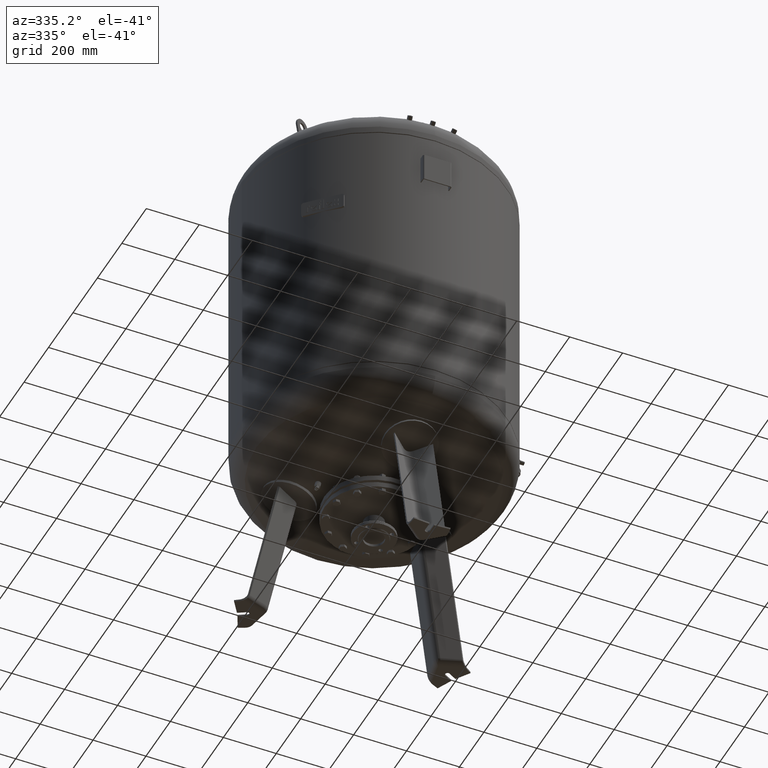
[diagram: clean part render]
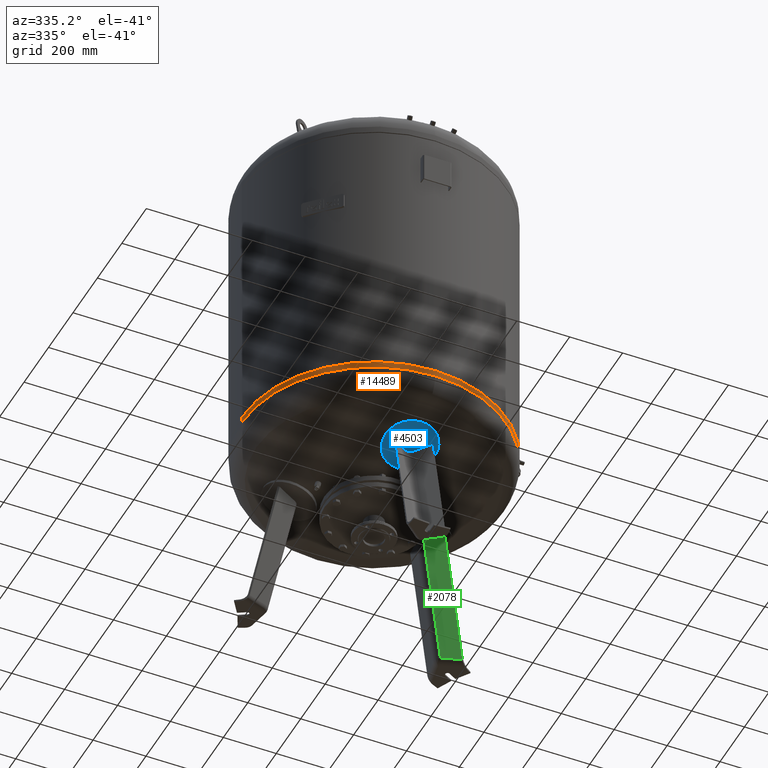
[diagram: same view with three faces highlighted in distinct colors, each labeled with its STEP entity id]
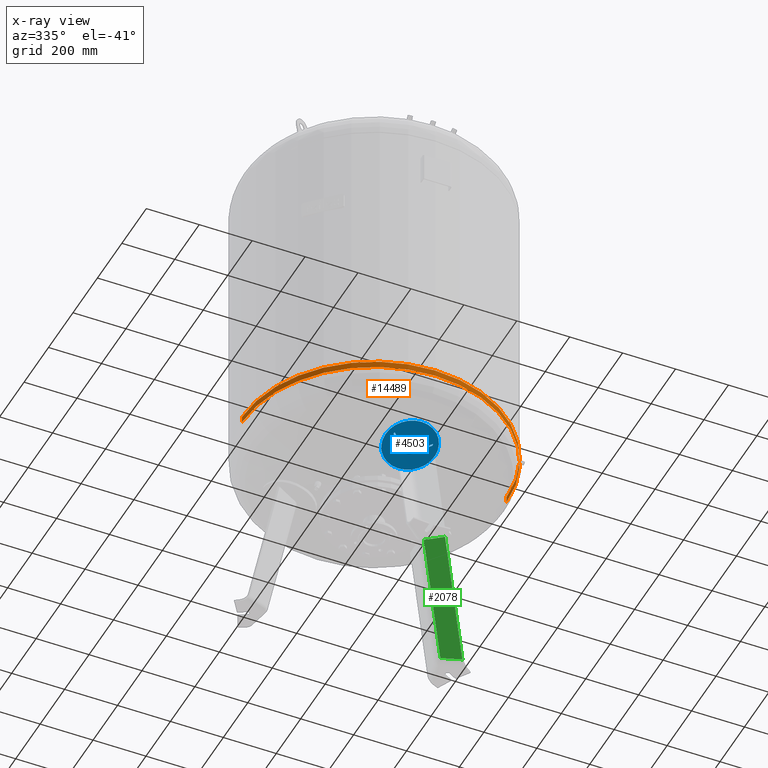
[diagram: x-ray of the same camera — body ghosted, the three highlighted faces saturated]
A machine part, auxiliary view with three faces highlighted in distinct colors.
The next image is the same camera in x-ray (body ghosted, the three faces saturated) — at least one of them is partly hidden behind the body in this view.
Their STEP definitions:

[orange] entity #14489 — the highlighted cylindrical surface (partial cylindrical patch) has radius 500 mm, axis along (-0, -0, 1).
#14297=CARTESIAN_POINT('',(-500.0,-3.995410E-014,677.500000000000000));
#14298=VERTEX_POINT('',#14297);
#14299=CARTESIAN_POINT('',(-500.0,-3.553717E-014,653.455355072719390));
#14300=VERTEX_POINT('',#14299);
#14301=CARTESIAN_POINT('',(-500.0,-3.995410E-014,677.500000000000000));
#14302=DIRECTION('',(0.0,0.0,-1.0));
#14303=VECTOR('',#14302,24.044644927280615);
#14304=LINE('',#14301,#14303);
#14305=EDGE_CURVE('',#14298,#14300,#14304,.T.);
#14307=CARTESIAN_POINT('',(500.0,2.127622E-014,677.500000000000110));
#14308=VERTEX_POINT('',#14307);
#14316=CARTESIAN_POINT('',(500.0,2.569315E-014,653.455355072719500));
#14317=VERTEX_POINT('',#14316);
#14318=CARTESIAN_POINT('',(500.0,2.127622E-014,677.500000000000110));
#14319=DIRECTION('',(0.0,0.0,-1.0));
#14320=VECTOR('',#14319,24.044644927280615);
#14321=LINE('',#14318,#14320);
#14322=EDGE_CURVE('',#14308,#14317,#14321,.T.);
#14348=CARTESIAN_POINT('',(3.381269E-030,-500.000000000000060,653.455355072719390));
#14349=VERTEX_POINT('',#14348);
#14359=CARTESIAN_POINT('',(-2.595210E-014,-3.553717E-014,653.455355072719500));
#14360=DIRECTION('',(0.0,0.0,1.0));
#14361=DIRECTION('',(-1.0,0.0,0.0));
#14362=AXIS2_PLACEMENT_3D('',#14359,#14360,#14361);
#14363=CIRCLE('',#14362,500.0);
#14364=EDGE_CURVE('',#14300,#14349,#14363,.T.);
#14461=CARTESIAN_POINT('',(-2.595210E-014,-3.553717E-014,653.455355072719500));
#14462=DIRECTION('',(0.0,0.0,1.0));
#14463=DIRECTION('',(-1.0,0.0,0.0));
#14464=AXIS2_PLACEMENT_3D('',#14461,#14462,#14463);
#14465=CIRCLE('',#14464,500.0);
#14466=EDGE_CURVE('',#14349,#14317,#14465,.T.);
#14471=CARTESIAN_POINT('',(-2.756489E-014,-3.774564E-014,665.477677536359810));
#14472=DIRECTION('',(-1.341503E-016,-1.836970E-016,1.0));
#14473=DIRECTION('',(-1.0,0.0,0.0));
#14474=AXIS2_PLACEMENT_3D('',#14471,#14472,#14473);
#14475=CYLINDRICAL_SURFACE('',#14474,500.0);
#14476=ORIENTED_EDGE('',*,*,#14305,.T.);
#14477=ORIENTED_EDGE('',*,*,#14364,.T.);
#14478=ORIENTED_EDGE('',*,*,#14466,.T.);
#14479=ORIENTED_EDGE('',*,*,#14322,.F.);
#14480=CARTESIAN_POINT('',(-2.917769E-014,-3.995410E-014,677.500000000000000));
#14481=DIRECTION('',(0.0,0.0,1.0));
#14482=DIRECTION('',(-1.0,0.0,0.0));
#14483=AXIS2_PLACEMENT_3D('',#14480,#14481,#14482);
#14484=CIRCLE('',#14483,500.0);
#14485=EDGE_CURVE('',#14298,#14308,#14484,.T.);
#14486=ORIENTED_EDGE('',*,*,#14485,.F.);
#14487=EDGE_LOOP('',(#14476,#14477,#14478,#14479,#14486));
#14488=FACE_OUTER_BOUND('',#14487,.T.);
#14489=ADVANCED_FACE('',(#14488),#14475,.T.);

[blue] entity #4503 — the highlighted spherical surface has radius 1006 mm.
#3715=CARTESIAN_POINT('',(1.355536E-013,-199.528414518467460,469.158360530759300));
#3716=VERTEX_POINT('',#3715);
#3725=CARTESIAN_POINT('',(-2.682530E-014,-389.739717777498130,530.961759405748920));
#3726=VERTEX_POINT('',#3725);
#3727=CARTESIAN_POINT('',(6.045519E-014,-294.634066147982880,500.060059968254170));
#3728=DIRECTION('',(-2.640756E-016,-0.309016994374948,-0.951056516295154));
#3729=DIRECTION('',(7.505351E-016,0.951056516295154,-0.309016994374948));
#3730=AXIS2_PLACEMENT_3D('',#3727,#3728,#3729);
#3731=CIRCLE('',#3730,100.0);
#3732=EDGE_CURVE('',#3726,#3716,#3731,.T.);
#4352=CARTESIAN_POINT('',(3.247985E-013,14.697347569170404,1452.084259496684100));
#4353=DIRECTION('',(1.0,0.0,0.0));
#4354=DIRECTION('',(7.505351E-016,0.951056516295154,-0.309016994374948));
#4355=AXIS2_PLACEMENT_3D('',#4352,#4353,#4354);
#4356=SPHERICAL_SURFACE('',#4355,1006.0);
#4357=CARTESIAN_POINT('',(6.045519E-014,-294.634066147982880,500.060059968254170));
#4358=DIRECTION('',(-2.640756E-016,-0.309016994374948,-0.951056516295154));
#4359=DIRECTION('',(7.505351E-016,0.951056516295154,-0.309016994374948));
#4360=AXIS2_PLACEMENT_3D('',#4357,#4358,#4359);
#4361=CIRCLE('',#4360,100.0);
#4362=EDGE_CURVE('',#3716,#3726,#4361,.T.);
#4363=ORIENTED_EDGE('',*,*,#4362,.T.);
#4364=ORIENTED_EDGE('',*,*,#3732,.T.);
#4365=EDGE_LOOP('',(#4363,#4364));
#4366=FACE_OUTER_BOUND('',#4365,.T.);
#4367=CARTESIAN_POINT('',(-72.837866169854934,-325.355732478448830,508.106215259451630));
#4368=VERTEX_POINT('',#4367);
#4369=CARTESIAN_POINT('',(-73.499999999999886,-318.506317434111050,505.718015578199410));
#4370=VERTEX_POINT('',#4369);
#4371=CARTESIAN_POINT('',(-84.667466494879974,7.077275584631195,1453.703955797395800));
#4372=DIRECTION('',(0.995793708775987,0.089621433789838,-0.019049623818306));
#4373=DIRECTION('',(-0.019126591083317,4.684664E-018,-0.999817070025078));
#4374=AXIS2_PLACEMENT_3D('',#4371,#4372,#4373);
#4375=CIRCLE('',#4374,1002.400484439319300);
#4376=EDGE_CURVE('',#4368,#4370,#4375,.T.);
#4377=ORIENTED_EDGE('',*,*,#4376,.F.);
#4378=CARTESIAN_POINT('',(-16.136450826554409,-280.133865715810600,490.392952149244080));
#4379=VERTEX_POINT('',#4378);
#4380=CARTESIAN_POINT('',(36.878824681629915,-27.989166038700091,1461.157558058853700));
#4381=DIRECTION('',(-0.645458033062181,0.747104967402683,-0.158802063077708));
#4382=DIRECTION('',(5.092368E-017,0.207911690817760,0.978147600733806));
#4383=AXIS2_PLACEMENT_3D('',#4380,#4381,#4382);
#4384=CIRCLE('',#4383,1004.376169121564000);
#4385=EDGE_CURVE('',#4379,#4368,#4384,.T.);
#4386=ORIENTED_EDGE('',*,*,#4385,.F.);
#4387=CARTESIAN_POINT('',(16.136450826554661,-280.133865715810600,490.392952149244080));
#4388=VERTEX_POINT('',#4387);
#4389=CARTESIAN_POINT('',(16.136450826554661,-280.133865715810600,490.392952149244080));
#4390=CARTESIAN_POINT('',(16.055788335213304,-280.068711173970600,490.371623892671440));
#4391=CARTESIAN_POINT('',(15.974560938435895,-280.003937796076910,490.350420493468330));
#4392=CARTESIAN_POINT('',(15.271072185139301,-279.450175733366620,490.169148601515130));
#4393=CARTESIAN_POINT('',(14.617155696579983,-278.983806029977020,490.016489016976440));
#4394=CARTESIAN_POINT('',(13.254162622372212,-278.109086722377530,489.730169035990510));
#4395=CARTESIAN_POINT('',(12.545018530551998,-277.700688845133810,489.596492822823280));
#4396=CARTESIAN_POINT('',(11.082569575685701,-276.951156519132950,489.351162059827520));
#4397=CARTESIAN_POINT('',(10.329265683405854,-276.610020363679380,489.239506937421310));
#4398=CARTESIAN_POINT('',(8.791205486625531,-276.001577381599190,489.040364541220580));
#4399=CARTESIAN_POINT('',(8.005754446746538,-275.733995894137930,488.952787360993230));
#4400=CARTESIAN_POINT('',(6.415809135875814,-275.276198818704300,488.802955942629920));
#4401=CARTESIAN_POINT('',(5.611314203531454,-275.085985307559840,488.740702376916890));
#4402=CARTESIAN_POINT('',(3.998040789200811,-274.783995146262500,488.641866930361120));
#4403=CARTESIAN_POINT('',(3.189177908543455,-274.672207140675880,488.605281330539300));
#4404=CARTESIAN_POINT('',(1.582421500277553,-274.524969362016180,488.557093949216380));
#4405=CARTESIAN_POINT('',(0.784527432496211,-274.489524912797550,488.545493912186370));
#4406=CARTESIAN_POINT('',(1.245596E-013,-274.489524912797550,488.545493912186370));
#4407=CARTESIAN_POINT('',(-0.784527432495960,-274.489524912797550,488.545493912186370));
#4408=CARTESIAN_POINT('',(-1.582421500277301,-274.524969362016180,488.557093949216380));
#4409=CARTESIAN_POINT('',(-3.189177908543210,-274.672207140675880,488.605281330539300));
#4410=CARTESIAN_POINT('',(-3.998040789200574,-274.783995146262500,488.641866930361120));
#4411=CARTESIAN_POINT('',(-5.611314203531220,-275.085985307559840,488.740702376916890));
#4412=CARTESIAN_POINT('',(-6.415809135875574,-275.276198818704300,488.802955942629920));
#4413=CARTESIAN_POINT('',(-8.005754446746293,-275.733995894137930,488.952787360993230));
#4414=CARTESIAN_POINT('',(-8.791205486625280,-276.001577381599190,489.040364541220580));
#4415=CARTESIAN_POINT('',(-10.329265683405596,-276.610020363679380,489.239506937421370));
#4416=CARTESIAN_POINT('',(-11.082569575685449,-276.951156519132950,489.351162059827520));
#4417=CARTESIAN_POINT('',(-12.545018530551733,-277.700688845133810,489.596492822823280));
#4418=CARTESIAN_POINT('',(-13.254162622371913,-278.109086722377530,489.730169035990630));
#4419=CARTESIAN_POINT('',(-14.617155696579696,-278.983806029976960,490.016489016976440));
#4420=CARTESIAN_POINT('',(-15.271072185138980,-279.450175733366730,490.169148601515020));
#4421=CARTESIAN_POINT('',(-15.974560938435571,-280.003937796077030,490.350420493468220));
#4422=CARTESIAN_POINT('',(-16.055788335213052,-280.068711173970600,490.371623892671440));
#4423=CARTESIAN_POINT('',(-16.136450826554409,-280.133865715810600,490.392952149244080));
#4424=B_SPLINE_CURVE_WITH_KNOTS('',3,(#4389,#4390,#4391,#4392,#4393,#4394,#4395,#4396,#4397,#4398,#4399,#4400,#4401,#4402,#4403,#4404,#4405,#4406,#4407,#4408,#4409,#4410,#4411,#4412,#4413,#4414,#4415,#4416,#4417,#4418,#4419,#4420,#4421,#4422,#4423),.UNSPECIFIED.,.F.,.U.,(4,2,2,2,2,2,2,2,3,2,2,2,2,2,2,2,4),(-16.784681571035506,-16.475076082417758,-14.121493784929527,-11.767911487441268,-9.414329189953008,-7.060746892464749,-4.707164594976490,-2.353582297488259,0.0,2.353582297488253,4.707164594976506,7.060746892464759,9.414329189953012,11.767911487441264,14.121493784929518,16.475076082417772,16.784681571035524),.UNSPECIFIED.);
#4425=EDGE_CURVE('',#4388,#4379,#4424,.T.);
#4426=ORIENTED_EDGE('',*,*,#4425,.F.);
#4427=CARTESIAN_POINT('',(72.837866169855118,-325.355732478448830,508.106215259451630));
#4428=VERTEX_POINT('',#4427);
#4429=CARTESIAN_POINT('',(-36.878824681629212,-27.989166038699977,1461.157558058853700));
#4430=DIRECTION('',(0.645458033062182,0.747104967402682,-0.158802063077709));
#4431=DIRECTION('',(5.092368E-017,0.207911690817760,0.978147600733805));
#4432=AXIS2_PLACEMENT_3D('',#4429,#4430,#4431);
#4433=CIRCLE('',#4432,1004.376169121563900);
#4434=EDGE_CURVE('',#4428,#4388,#4433,.T.);
#4435=ORIENTED_EDGE('',*,*,#4434,.F.);
#4436=CARTESIAN_POINT('',(73.500000000000128,-318.506317434111050,505.718015578199190));
#4437=VERTEX_POINT('',#4436);
#4438=CARTESIAN_POINT('',(84.667466494880742,7.077275584631138,1453.703955797395800));
#4439=DIRECTION('',(-0.995793708775987,0.089621433789840,-0.019049623818306));
#4440=DIRECTION('',(-0.019126591083317,4.684664E-018,0.999817070025078));
#4441=AXIS2_PLACEMENT_3D('',#4438,#4439,#4440);
#4442=CIRCLE('',#4441,1002.400484439319300);
#4443=EDGE_CURVE('',#4437,#4428,#4442,.T.);
#4444=ORIENTED_EDGE('',*,*,#4443,.F.);
#4445=CARTESIAN_POINT('',(16.136450826554636,-272.683576393646550,488.140371349142640));
#4446=VERTEX_POINT('',#4445);
#4447=CARTESIAN_POINT('',(-33.055219954219147,-23.563418834532399,1460.216836450315200));
#4448=DIRECTION('',(-0.645458033062182,-0.747104967402682,0.158802063077709));
#4449=DIRECTION('',(-5.092368E-017,-0.207911690817760,-0.978147600733805));
#4450=AXIS2_PLACEMENT_3D('',#4447,#4448,#4449);
#4451=CIRCLE('',#4450,1004.695639176399000);
#4452=EDGE_CURVE('',#4446,#4437,#4451,.T.);
#4453=ORIENTED_EDGE('',*,*,#4452,.F.);
#4454=CARTESIAN_POINT('',(-16.136450826554437,-272.683576393646660,488.140371349142640));
#4455=VERTEX_POINT('',#4454);
#4456=CARTESIAN_POINT('',(-16.136450826554437,-272.683576393646660,488.140371349142640));
#4457=CARTESIAN_POINT('',(-16.056543514067616,-272.618922255207510,488.119758337632730));
#4458=CARTESIAN_POINT('',(-15.976082350464866,-272.554643239234570,488.099264993121150));
#4459=CARTESIAN_POINT('',(-15.273208616904984,-272.000291427142600,487.922527930590210));
#4460=CARTESIAN_POINT('',(-14.619130546465540,-271.532916879230870,487.773524823873860));
#4461=CARTESIAN_POINT('',(-13.255823579241481,-270.656345283794110,487.494072222439000));
#4462=CARTESIAN_POINT('',(-12.546527218548720,-270.247099859986290,487.363607291874300));
#4463=CARTESIAN_POINT('',(-11.083789489576636,-269.496035811884780,487.124177053163460));
#4464=CARTESIAN_POINT('',(-10.330349102090997,-269.154215457124850,487.015211181380040));
#4465=CARTESIAN_POINT('',(-8.792035986315941,-268.544568607379860,486.820870060878350));
#4466=CARTESIAN_POINT('',(-8.006469333644533,-268.276467252523840,486.735407184319850));
#4467=CARTESIAN_POINT('',(-6.416316571608137,-267.817791462800410,486.589196233214520));
#4468=CARTESIAN_POINT('',(-5.611729804286177,-267.627219100374360,486.528448813028320));
#4469=CARTESIAN_POINT('',(-3.998296859116512,-267.324664919232480,486.432006304194660));
#4470=CARTESIAN_POINT('',(-3.189366430951302,-267.212671750275380,486.396307595334520));
#4471=CARTESIAN_POINT('',(-1.582498479684512,-267.065165766231530,486.349288981572390));
#4472=CARTESIAN_POINT('',(-0.784560416873323,-267.029658287757290,486.337970779564160));
#4473=CARTESIAN_POINT('',(9.974081E-014,-267.029658287757290,486.337970779564160));
#4474=CARTESIAN_POINT('',(0.784560416873521,-267.029658287757290,486.337970779564160));
#4475=CARTESIAN_POINT('',(1.582498479684705,-267.065165766231530,486.349288981572390));
#4476=CARTESIAN_POINT('',(3.189366430951490,-267.212671750275380,486.396307595334520));
#4477=CARTESIAN_POINT('',(3.998296859116698,-267.324664919232590,486.432006304194540));
#4478=CARTESIAN_POINT('',(5.611729804286367,-267.627219100374360,486.528448813028210));
#4479=CARTESIAN_POINT('',(6.416316571608327,-267.817791462800410,486.589196233214520));
#4480=CARTESIAN_POINT('',(8.006469333644727,-268.276467252523840,486.735407184319850));
#4481=CARTESIAN_POINT('',(8.792035986316138,-268.544568607379800,486.820870060878290));
#4482=CARTESIAN_POINT('',(10.330349102091189,-269.154215457124790,487.015211181379980));
#4483=CARTESIAN_POINT('',(11.083789489576766,-269.496035811884840,487.124177053163520));
#4484=CARTESIAN_POINT('',(12.546527218548844,-270.247099859986290,487.363607291874360));
#4485=CARTESIAN_POINT('',(13.255823579241612,-270.656345283794110,487.494072222438890));
#4486=CARTESIAN_POINT('',(14.619130546465692,-271.532916879230870,487.773524823873860));
#4487=CARTESIAN_POINT('',(15.273208616905162,-272.000291427142600,487.922527930590210));
#4488=CARTESIAN_POINT('',(15.976082350465026,-272.554643239234570,488.099264993121150));
#4489=CARTESIAN_POINT('',(16.056543514067837,-272.618922255207450,488.119758337632730));
#4490=CARTESIAN_POINT('',(16.136450826554636,-272.683576393646550,488.140371349142640));
#4491=B_SPLINE_CURVE_WITH_KNOTS('',3,(#4456,#4457,#4458,#4459,#4460,#4461,#4462,#4463,#4464,#4465,#4466,#4467,#4468,#4469,#4470,#4471,#4472,#4473,#4474,#4475,#4476,#4477,#4478,#4479,#4480,#4481,#4482,#4483,#4484,#4485,#4486,#4487,#4488,#4489,#4490),.UNSPECIFIED.,.F.,.U.,(4,2,2,2,2,2,2,2,3,2,2,2,2,2,2,2,4),(-16.782365627384145,-16.475768754341857,-14.122087503721616,-11.768406253101347,-9.414725002481077,-7.061043751860808,-4.707362501240539,-2.353681250620269,0.0,2.353681250620262,4.707362501240525,7.061043751860787,9.414725002481049,11.768406253101311,14.122087503721573,16.475768754341836,16.782365627384028),.UNSPECIFIED.);
#4492=EDGE_CURVE('',#4455,#4446,#4491,.T.);
#4493=ORIENTED_EDGE('',*,*,#4492,.F.);
#4494=CARTESIAN_POINT('',(33.055219954219837,-23.563418834532513,1460.216836450315200));
#4495=DIRECTION('',(0.645458033062181,-0.747104967402683,0.158802063077709));
#4496=DIRECTION('',(-5.092368E-017,-0.207911690817760,-0.978147600733806));
#4497=AXIS2_PLACEMENT_3D('',#4494,#4495,#4496);
#4498=CIRCLE('',#4497,1004.695639176398800);
#4499=EDGE_CURVE('',#4370,#4455,#4498,.T.);
#4500=ORIENTED_EDGE('',*,*,#4499,.F.);
#4501=EDGE_LOOP('',(#4377,#4386,#4426,#4435,#4444,#4453,#4493,#4500));
#4502=FACE_BOUND('',#4501,.T.);
#4503=ADVANCED_FACE('',(#4366,#4502),#4356,.T.);

[green] entity #2078 — the highlighted planar face has unit normal (-0.3243, -0.9325, -0.1588).
#1301=CARTESIAN_POINT('',(401.805642099864600,147.112106057392170,21.029948423057292));
#1302=VERTEX_POINT('',#1301);
#1310=CARTESIAN_POINT('',(330.204527811773970,172.010904562808040,21.029948423057292));
#1311=VERTEX_POINT('',#1310);
#1312=CARTESIAN_POINT('',(401.805642099864600,147.112106057392170,21.029948423057292));
#1313=DIRECTION('',(-0.944521094592691,0.328450760190053,0.0));
#1314=VECTOR('',#1313,75.806792138366575);
#1315=LINE('',#1312,#1314);
#1316=EDGE_CURVE('',#1302,#1311,#1315,.T.);
#1762=CARTESIAN_POINT('',(312.584562163770560,95.600291538899285,505.718015578199410));
#1763=VERTEX_POINT('',#1762);
#1847=CARTESIAN_POINT('',(244.219129764969920,122.367211854108690,488.140371349142640));
#1848=VERTEX_POINT('',#1847);
#1887=CARTESIAN_POINT('',(3.878909333607965,40.408369625302811,1460.216836450315200));
#1888=DIRECTION('',(0.324282864533178,0.932535537409926,0.158802063077709));
#1889=DIRECTION('',(0.180056805991956,0.103955845408880,-0.978147600733806));
#1890=AXIS2_PLACEMENT_3D('',#1887,#1888,#1889);
#1891=CIRCLE('',#1890,1004.695639176398800);
#1892=EDGE_CURVE('',#1763,#1848,#1891,.T.);
#2000=CARTESIAN_POINT('',(330.204527811773970,172.010904562808040,21.029948423057292));
#2001=DIRECTION('',(-0.180056805991956,-0.103955845408880,0.978147600733805));
#2002=VECTOR('',#2001,477.545947641909550);
#2003=LINE('',#2000,#2002);
#2004=EDGE_CURVE('',#1311,#1848,#2003,.T.);
#2055=CARTESIAN_POINT('',(401.805642099864600,147.112106057392170,21.029948423057292));
#2056=DIRECTION('',(-0.180056805991956,-0.103955845408880,0.978147600733806));
#2057=VECTOR('',#2056,495.516286899369280);
#2058=LINE('',#2055,#2057);
#2059=EDGE_CURVE('',#1302,#1763,#2058,.T.);
#2067=CARTESIAN_POINT('',(414.463905404747950,154.420357783939720,-47.735293817669401));
#2068=DIRECTION('',(-0.324282864533177,-0.932535537409926,-0.158802063077709));
#2069=DIRECTION('',(0.180056805991956,0.103955845408880,-0.978147600733806));
#2070=AXIS2_PLACEMENT_3D('',#2067,#2068,#2069);
#2071=PLANE('',#2070);
#2072=ORIENTED_EDGE('',*,*,#2059,.T.);
#2073=ORIENTED_EDGE('',*,*,#1892,.T.);
#2074=ORIENTED_EDGE('',*,*,#2004,.F.);
#2075=ORIENTED_EDGE('',*,*,#1316,.F.);
#2076=EDGE_LOOP('',(#2072,#2073,#2074,#2075));
#2077=FACE_OUTER_BOUND('',#2076,.T.);
#2078=ADVANCED_FACE('',(#2077),#2071,.T.);